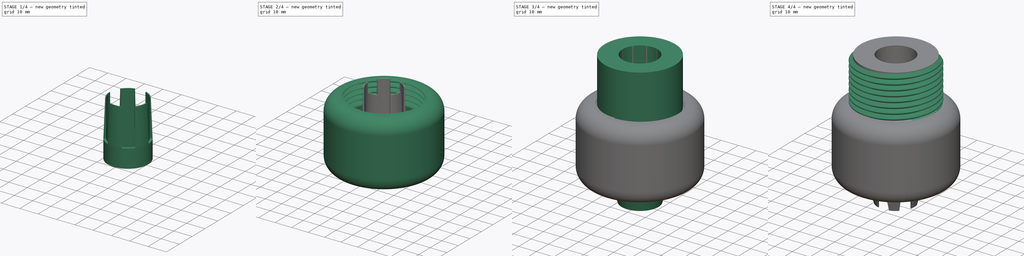
[diagram: build sequence overview — one tinted view per stage of 4, left to right]
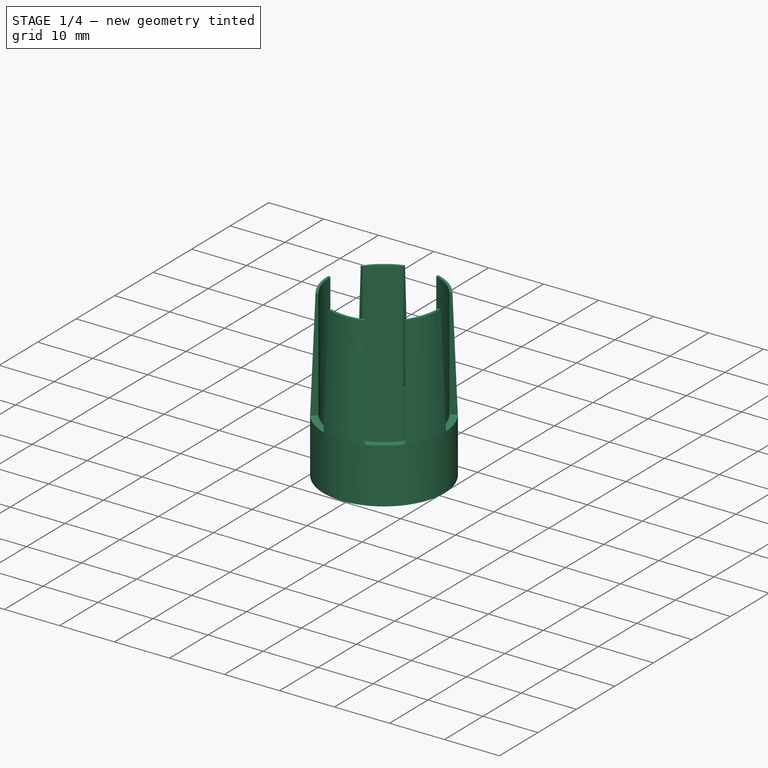
[diagram: stage 1 of 4 — iso view after this stage's code; geometry added in this stage tinted green]
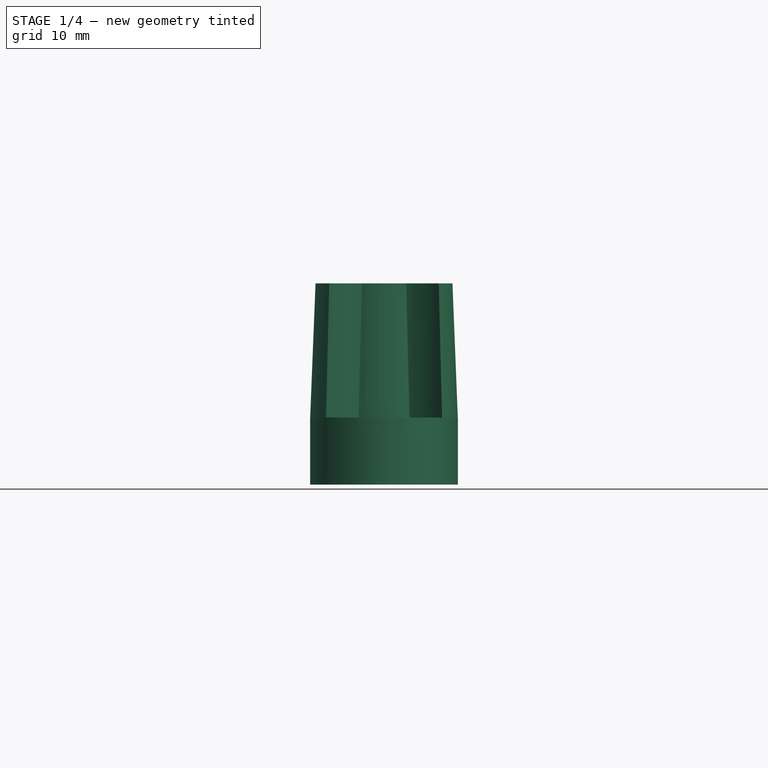
[diagram: stage 1 of 4 — front view after this stage's code; geometry added in this stage tinted green]
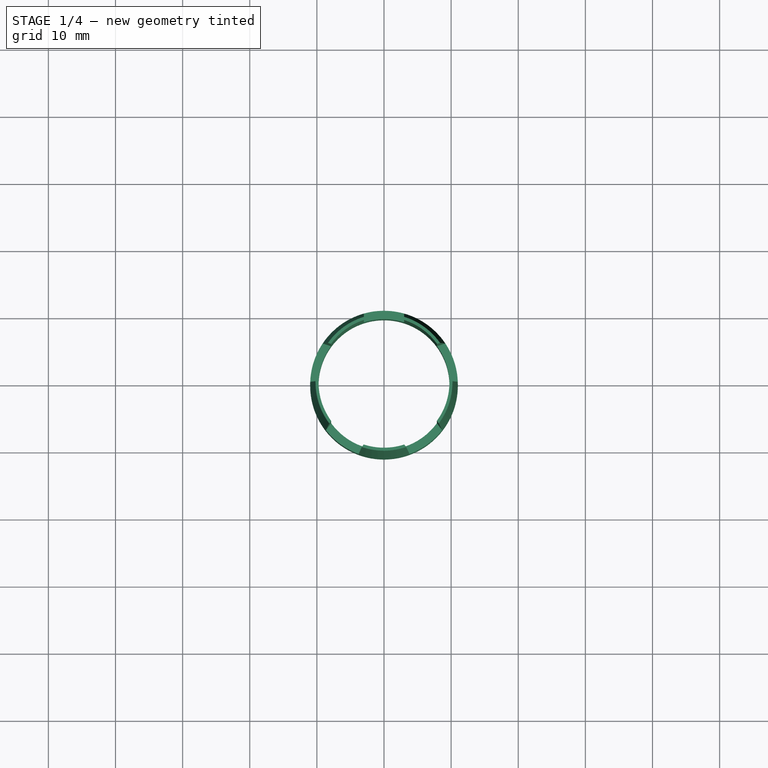
[diagram: stage 1 of 4 — top view after this stage's code; geometry added in this stage tinted green]
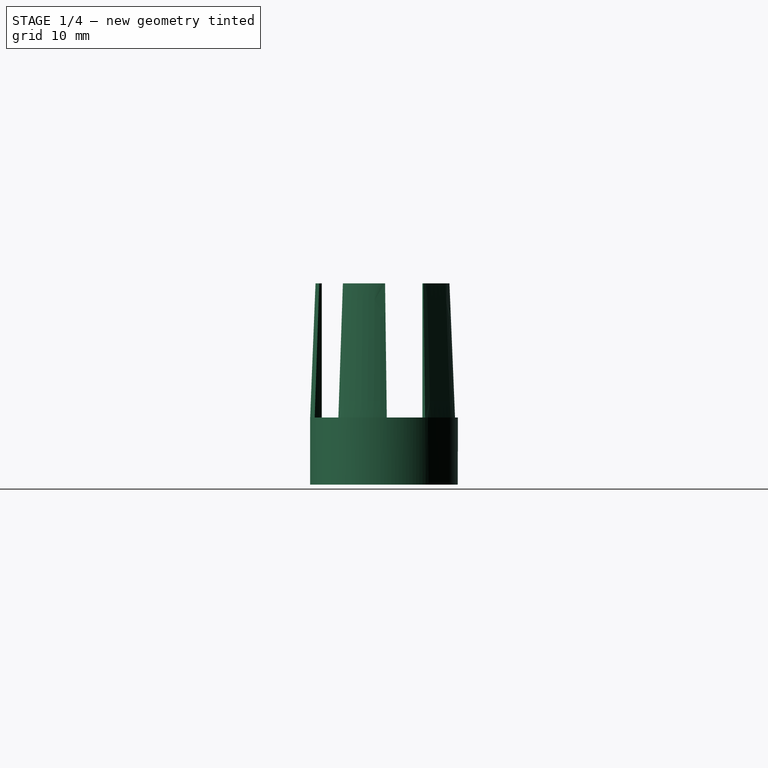
[diagram: stage 1 of 4 — right view after this stage's code; geometry added in this stage tinted green]
FCSTD DOCUMENT  (FreeCAD 0.21R33668 +26 (Git))
Label: asztallab_szorito
License: All rights reserved
LicenseURL: https://en.wikipedia.org/wiki/All_rights_reserved
objects: Sketcher::SketchObject×9, PartDesign::Revolution×3, PartDesign::Body×3, PartDesign::Pocket×2, PartDesign::PolarPattern×2, PartDesign::SubtractiveHelix×2, PartDesign::AdditiveHelix×1, PartDesign::Fillet×1
note: 32 computed .brp shape members not serialized (recipe doc carries the construction recipe); baked Part::Feature solids carry a one-line shape summary decoded from their .brp

FEATURE [Sketcher::SketchObject] Sketch008
  FullyConstrained = false
  MapMode = 5
  Placement = pos=(0,0,0) rot=(1,0,0;1.5708rad)
  Support = -> [XZ_Plane]
  sketch-geometry (5):
    g0: LineSegment StartX=-28.4554 StartY=27 StartZ=0 EndX=-28.4554 EndY=42 EndZ=0
    g1: LineSegment StartX=-28.4554 StartY=42 StartZ=0 EndX=28.4554 EndY=42 EndZ=0
    g2: LineSegment StartX=28.4554 StartY=42 StartZ=0 EndX=28.4554 EndY=27 EndZ=0
    g3: LineSegment StartX=28.4554 StartY=27 StartZ=0 EndX=-28.4554 EndY=27 EndZ=0
    g4: GeomPoint X=0 Y=34.5 Z=0
  constraints (12):
    c: Coincident(g0,g1)
    c: Coincident(g1,g2)
    c: Coincident(g2,g3)
    c: Coincident(g3,g0)
    c: Horizontal(g1)
    c: Horizontal(g3)
    c: Vertical(g0)
    c: Vertical(g2)
    c: Symmetric(g1,g0,g4)
    c: PointOnObject(g4,g-2)
    c: DistanceY(g2,g2) = 15
    c: DistanceY(g-1,g2) = 27
FEATURE [PartDesign::Body] Body  label="felso resz"
  Group = -> [Sketch,Revolution,Sketch001,AdditiveHelix,Sketch003,Pocket,PolarPattern,Sketch008]
  Origin = -> Origin
  Tip = -> PolarPattern
FEATURE [Sketcher::SketchObject] Sketch009
  FullyConstrained = false
  MapMode = 5
  Placement = pos=(0,0,0) rot=(1,0,0;1.5708rad)
  Support = -> [XZ_Plane002]
  sketch-geometry (5):
    g0: LineSegment StartX=-34.2001 StartY=0 StartZ=0 EndX=-34.2001 EndY=16 EndZ=0
    g1: LineSegment StartX=-34.2001 StartY=16 StartZ=0 EndX=34.2001 EndY=16 EndZ=0
    g2: LineSegment StartX=34.2001 StartY=16 StartZ=0 EndX=34.2001 EndY=0 EndZ=0
    g3: LineSegment StartX=34.2001 StartY=0 StartZ=0 EndX=-34.2001 EndY=0 EndZ=0
    g4: GeomPoint X=0 Y=8 Z=0
  constraints (12):
    c: Coincident(g0,g1)
    c: Coincident(g1,g2)
    c: Coincident(g2,g3)
    c: Coincident(g3,g0)
    c: Horizontal(g1)
    c: Horizontal(g3)
    c: Vertical(g0)
    c: Vertical(g2)
    c: Symmetric(g1,g0,g4)
    c: PointOnObject(g4,g-2)
    c: DistanceY(g2,g2) = 16
    c: PointOnObject(g2,g-1)
FEATURE [PartDesign::Body] Body002  label="szorito"
  Group = -> [Sketch006,Revolution002,Fillet,Sketch007,SubtractiveHelix,SubtractiveHelix001,Sketch009]
  Origin = -> Origin002
  Tip = -> SubtractiveHelix001
FEATURE [Sketcher::SketchObject] Sketch010
  FullyConstrained = true
  MapMode = 5
  Placement = pos=(0,0,0) rot=(1,0,0;1.5708rad)
  Support = -> [XZ_Plane003]
  sketch-geometry (5):
    g0: LineSegment StartX=-9.75 StartY=-10 StartZ=0 EndX=-9.75 EndY=20 EndZ=0
    g1: LineSegment StartX=-10.2 StartY=20 StartZ=0 EndX=-11 EndY=0 EndZ=0
    g2: LineSegment StartX=-11 StartY=0 StartZ=0 EndX=-11 EndY=-10 EndZ=0
    g3: LineSegment StartX=-11 StartY=-10 StartZ=0 EndX=-9.75 EndY=-10 EndZ=0
    g4: LineSegment StartX=-10.2 StartY=20 StartZ=0 EndX=-9.75 EndY=20 EndZ=0
  constraints (15):
    c: Vertical(g0)
    c: PointOnObject(g1,g-1)
    c: Vertical(g2)
    c: Horizontal(g3)
    c: Coincident(g3,g0)
    c: DistanceX(g0,g-1) = 9.75
    c: DistanceX(g1,g-1) = 11
    c: Coincident(g2,g1)
    c: Coincident(g2,g3)
    c: Horizontal(g4)
    c: DistanceX(g4,g4) = 0.45
    c: Coincident(g1,g4)
    c: Coincident(g0,g4)
    c: DistanceY(g1,g1) = 20
    c: DistanceY(g2,g2) = 10
FEATURE [PartDesign::Revolution] Revolution003
  Angle = 360
  Axis = (0,2e-16,1)
  Base = (0,0,0)
  Placement = pos=(0,0,0) rot=(1,0,0;1.5708rad)
  Profile = -> Sketch010
  ReferenceAxis = -> Sketch010 [V_Axis]
FEATURE [Sketcher::SketchObject] Sketch011
  FullyConstrained = true
  MapMode = 5
  Placement = pos=(0,0,0) rot=(1,0,0;1.5708rad)
  Support = -> [XZ_Plane003]
  sketch-geometry (4):
    g0: LineSegment StartX=-3 StartY=0 StartZ=0 EndX=3 EndY=0 EndZ=0
    g1: LineSegment StartX=3 StartY=0 StartZ=0 EndX=3 EndY=30 EndZ=0
    g2: LineSegment StartX=3 StartY=30 StartZ=0 EndX=-3 EndY=30 EndZ=0
    g3: LineSegment StartX=-3 StartY=30 StartZ=0 EndX=-3 EndY=0 EndZ=0
  constraints (11):
    c: Coincident(g0,g1)
    c: Coincident(g1,g2)
    c: Coincident(g2,g3)
    c: Coincident(g3,g0)
    c: Horizontal(g0)
    c: Horizontal(g2)
    c: Vertical(g1)
    c: Vertical(g3)
    c: Symmetric(g0,g0,g-1)
    c: DistanceY(g1,g1) = 30
    c: DistanceX(g2,g2) = 6
FEATURE [PartDesign::Pocket] Pocket001
  BaseFeature = -> Revolution003
  Direction = (0,1,-2e-16)
  Length = 5
  Length2 = 5
  Placement = pos=(0,0,0) rot=(1,0,0;1.5708rad)
  Profile = -> Sketch011
  ReferenceAxis = -> Sketch011 [N_Axis]
  Type = 1
FEATURE [PartDesign::PolarPattern] PolarPattern001
  Angle = 360
  Axis = -> Sketch011 [V_Axis]
  BaseFeature = -> Pocket001
  Occurrences = 5
  Originals = -> [Pocket001]
  Placement = pos=(0,0,0) rot=(1,0,0;1.5708rad)
FEATURE [PartDesign::Body] Body003  label="hezagolo"
  Group = -> [Sketch010,Revolution003,Sketch011,Pocket001,PolarPattern001]
  Origin = -> Origin003
  Tip = -> PolarPattern001
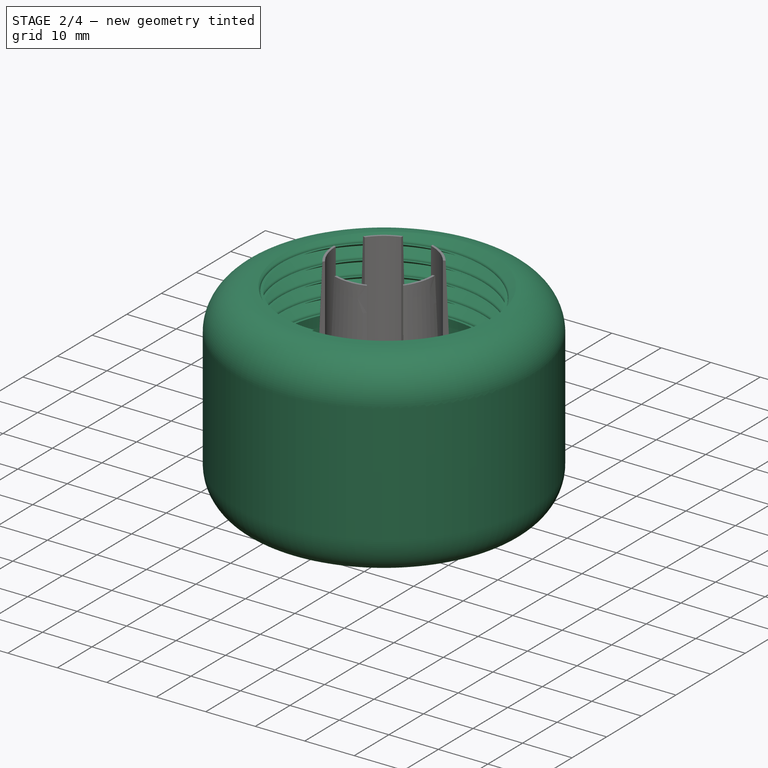
[diagram: stage 2 of 4 — iso view after this stage's code; geometry added in this stage tinted green]
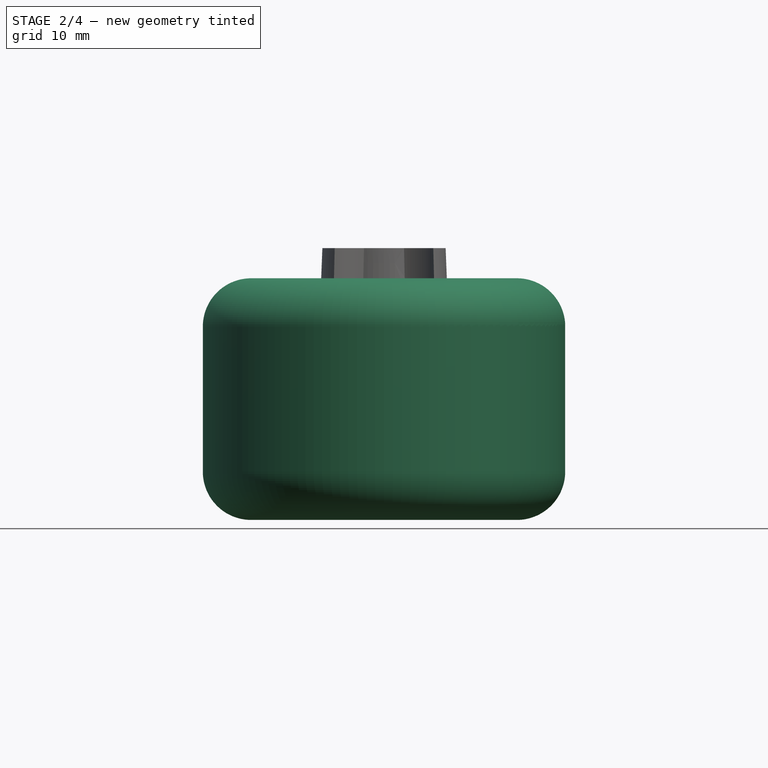
[diagram: stage 2 of 4 — front view after this stage's code; geometry added in this stage tinted green]
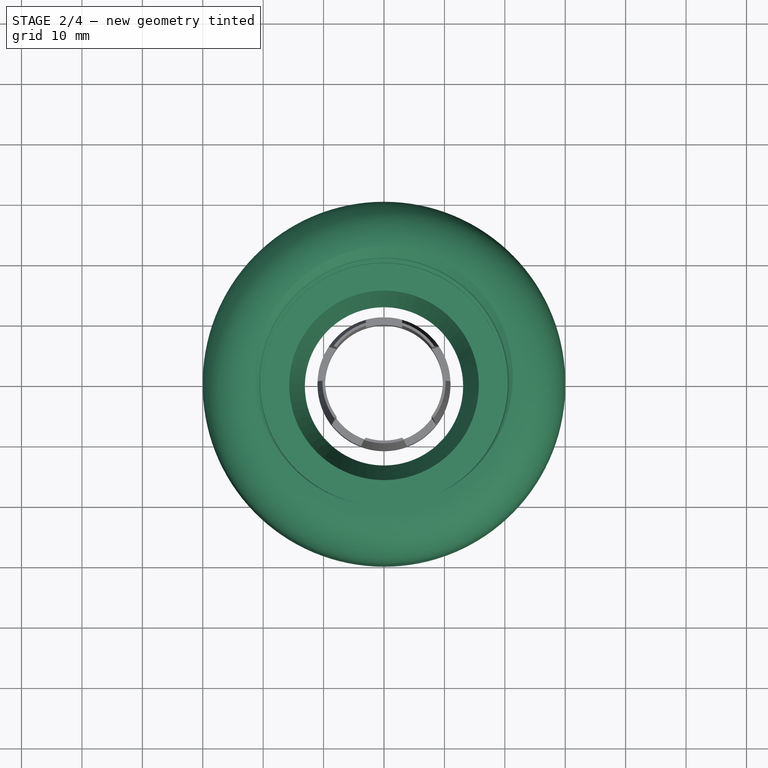
[diagram: stage 2 of 4 — top view after this stage's code; geometry added in this stage tinted green]
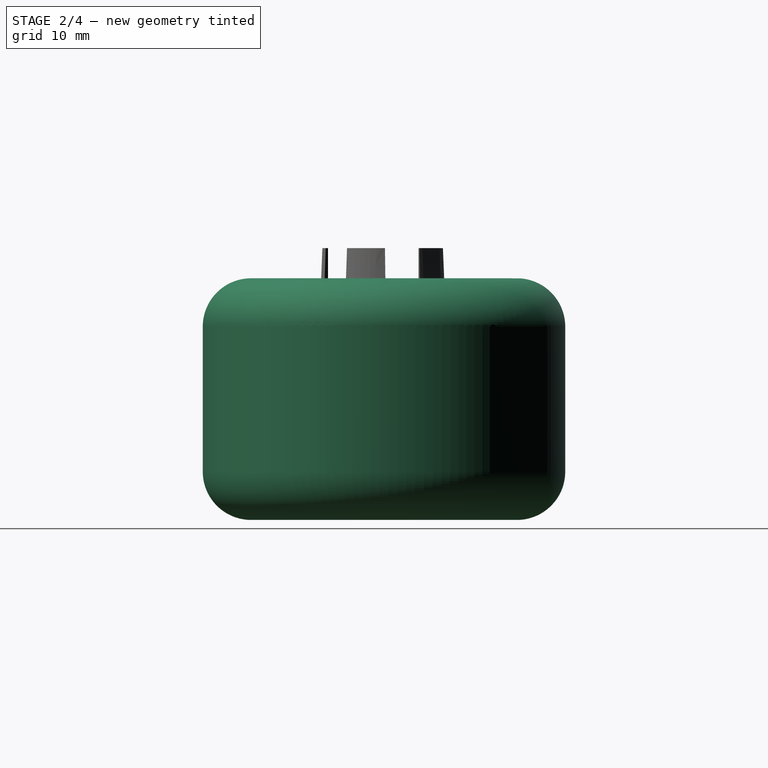
[diagram: stage 2 of 4 — right view after this stage's code; geometry added in this stage tinted green]
FEATURE [Sketcher::SketchObject] Sketch006
  FullyConstrained = true
  MapMode = 5
  Placement = pos=(0,0,0) rot=(0.57735,0.57735,0.57735;2.0944rad)
  Support = -> [YZ_Plane002]
  sketch-geometry (9):
    g0: LineSegment StartX=-25 StartY=0 StartZ=0 EndX=-25 EndY=-7 EndZ=0
    g1: LineSegment StartX=-20.1845 StartY=-15.3407 StartZ=0 EndX=-15.6845 EndY=-15.3407 EndZ=0
    g2: LineSegment StartX=-15.6845 StartY=-15.3407 StartZ=0 EndX=-13.0963 EndY=-25 EndZ=0
    g3: LineSegment StartX=-13.0963 StartY=-25 StartZ=0 EndX=-30 EndY=-25 EndZ=0
    g4: LineSegment StartX=-30 StartY=-25 StartZ=0 EndX=-30 EndY=15 EndZ=0
    g5: LineSegment StartX=-30 StartY=15 StartZ=0 EndX=-20 EndY=15 EndZ=0
    g6: LineSegment StartX=-25 StartY=0 StartZ=0 EndX=-20 EndY=0 EndZ=0
    g7: LineSegment StartX=-20 StartY=0 StartZ=0 EndX=-20 EndY=15 EndZ=0
    g8: LineSegment StartX=-20.1845 StartY=-15.3407 StartZ=0 EndX=-25 EndY=-7 EndZ=0
  constraints (27):
    c: Vertical(g0)
    c: Horizontal(g1)
    c: Coincident(g2,g1)
    c: Coincident(g3,g2)
    c: Horizontal(g3)
    c: Vertical(g4)
    c: Horizontal(g5)
    c: Coincident(g6,g0)
    c: Coincident(g7,g5)
    c: Coincident(g4,g5)
    c: Coincident(g3,g4)
    c: Angle(g2,g-1) = 1.309
    c: Coincident(g0,g8)
    c: Coincident(g1,g8)
    c: Horizontal(g6)
    c: Coincident(g6,g7)
    c: Vertical(g7)
    c: Angle(g1,g8) = 2.0944
    c: DistanceX(g3,g0) = 5
    c: DistanceX(g6,g-1) = 20
    c: DistanceY(g7,g7) = 15
    c: DistanceY(g0,g0) = 7
    c: Distance(g2) = 10
    c: DistanceX(g6,g6) = 5
    c: DistanceY(g3,g0) = 25
    c: PointOnObject(g6,g-1)
    c: DistanceX(g1,g1) = 4.5
FEATURE [PartDesign::Revolution] Revolution002
  Angle = 360
  Axis = (-2e-16,3e-16,1)
  Base = (0,0,0)
  Placement = pos=(0,0,0) rot=(0.57735,0.57735,0.57735;2.0944rad)
  Profile = -> Sketch006
  ReferenceAxis = -> Sketch006 [V_Axis]
FEATURE [PartDesign::Fillet] Fillet
  Base = -> Revolution002 [Edge11,Edge10]
  BaseFeature = -> Revolution002
  Placement = pos=(0,0,0) rot=(0.57735,0.57735,0.57735;2.0944rad)
  Radius = 8
  SupportTransform = false
  UseAllEdges = false
FEATURE [Sketcher::SketchObject] Sketch007
  FullyConstrained = true
  MapMode = 5
  Placement = pos=(0,0,0) rot=(0.57735,0.57735,0.57735;2.0944rad)
  Support = -> [YZ_Plane002]
  sketch-geometry (8):
    g0: LineSegment StartX=-20.75 StartY=2.56699 StartZ=0 EndX=-22.5981 EndY=1.5 EndZ=0
    g1: LineSegment StartX=-22.5981 StartY=1.5 StartZ=0 EndX=-20.75 EndY=0.433013 EndZ=0
    g2: LineSegment StartX=-20.5 StartY=3 StartZ=0 EndX=-19.8981 EndY=3 EndZ=0
    g3: LineSegment StartX=-19.8981 StartY=3 StartZ=0 EndX=-19.8981 EndY=0 EndZ=0
    g4: LineSegment StartX=-19.8981 StartY=0 StartZ=0 EndX=-20.5 EndY=0 EndZ=0
    g5: ArcOfCircle CenterX=-21 CenterY=3 CenterZ=0 NormalX=0 NormalY=0 NormalZ=1 AngleXU=0 Radius=0.5 StartAngle=5.23599 EndAngle=6.28319
    g6: ArcOfCircle CenterX=-21 CenterY=0 CenterZ=0 NormalX=0 NormalY=0 NormalZ=1 AngleXU=0 Radius=0.5 StartAngle=0 EndAngle=1.0472
    g7: LineSegment StartX=-19.8981 StartY=1.5 StartZ=0 EndX=-22.5981 EndY=1.5 EndZ=0
  constraints (23):
    c: PointOnObject(g4,g-1)
    c: Coincident(g1,g0)
    c: Coincident(g3,g2)
    c: PointOnObject(g3,g-1)
    c: Vertical(g3)
    c: Coincident(g4,g3)
    c: Horizontal(g2)
    c: Equal(g0,g1)
    c: Angle(g1,g0) = 1.0472
    c: DistanceY(g4,g2) = 3
    c: DistanceX(g2,g-1) = 20.5
    c: Tangent(g0,g5) = 1.5708
    c: Tangent(g1,g6) = 1.5708
    c: Diameter(g5) = 1
    c: Horizontal(g5,g2)
    c: Coincident(g7,g0)
    c: Horizontal(g7)
    c: Symmetric(g2,g3,g7)
    c: Diameter(g6) = 1
    c: PointOnObject(g6,g-1)
    c: DistanceX(g7,g7) = 2.7
    c: Coincident(g2,g5)
    c: Coincident(g6,g4)
FEATURE [PartDesign::SubtractiveHelix] SubtractiveHelix
  Angle = 0
  Axis = (-2e-16,3e-16,1)
  Base = (0,0,0)
  BaseFeature = -> Fillet
  Growth = 0
  HasBeenEdited = true
  Height = 15
  LeftHanded = false
  Mode = 0
  Outside = false
  Pitch = 3.001
  Placement = pos=(0,0,0) rot=(0.57735,0.57735,0.57735;2.0944rad)
  Profile = -> Sketch007
  ReferenceAxis = -> Sketch007 [V_Axis]
  Turns = 4.99833
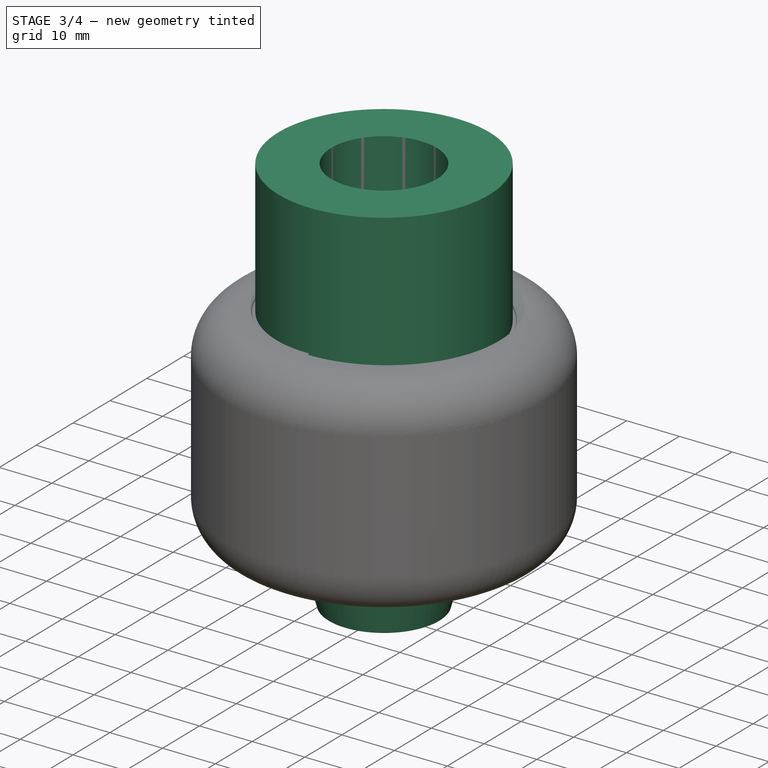
[diagram: stage 3 of 4 — iso view after this stage's code; geometry added in this stage tinted green]
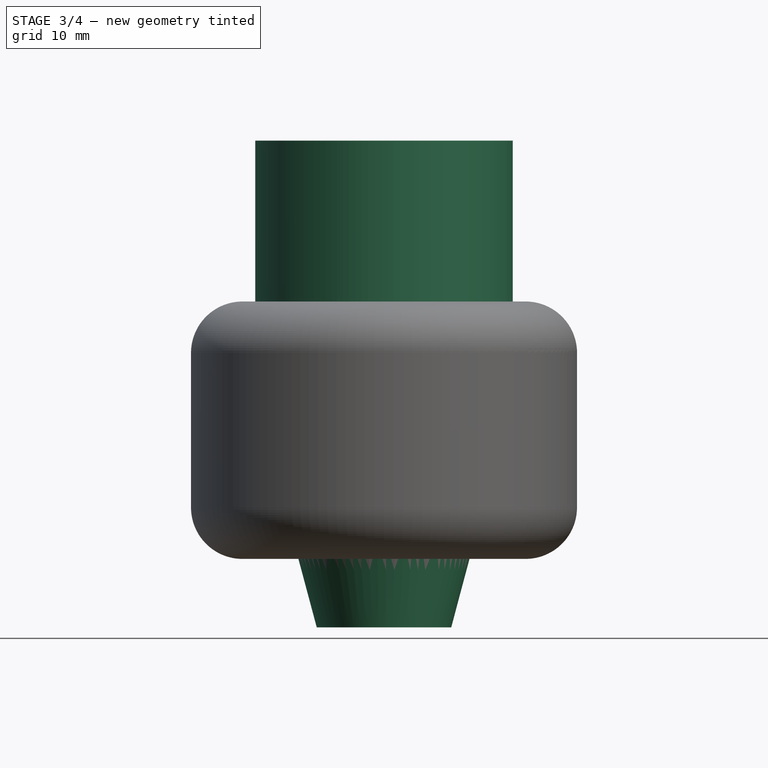
[diagram: stage 3 of 4 — front view after this stage's code; geometry added in this stage tinted green]
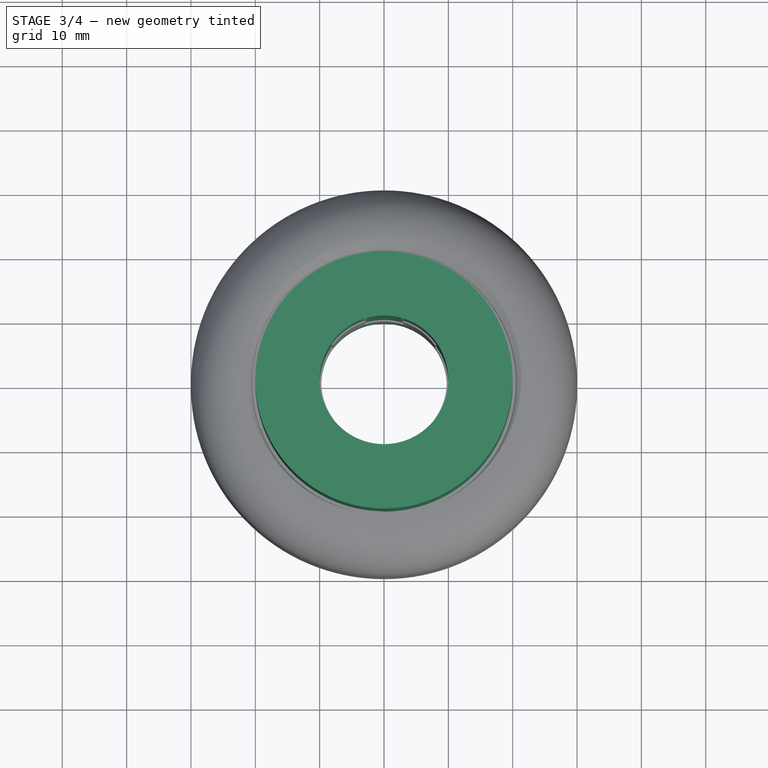
[diagram: stage 3 of 4 — top view after this stage's code; geometry added in this stage tinted green]
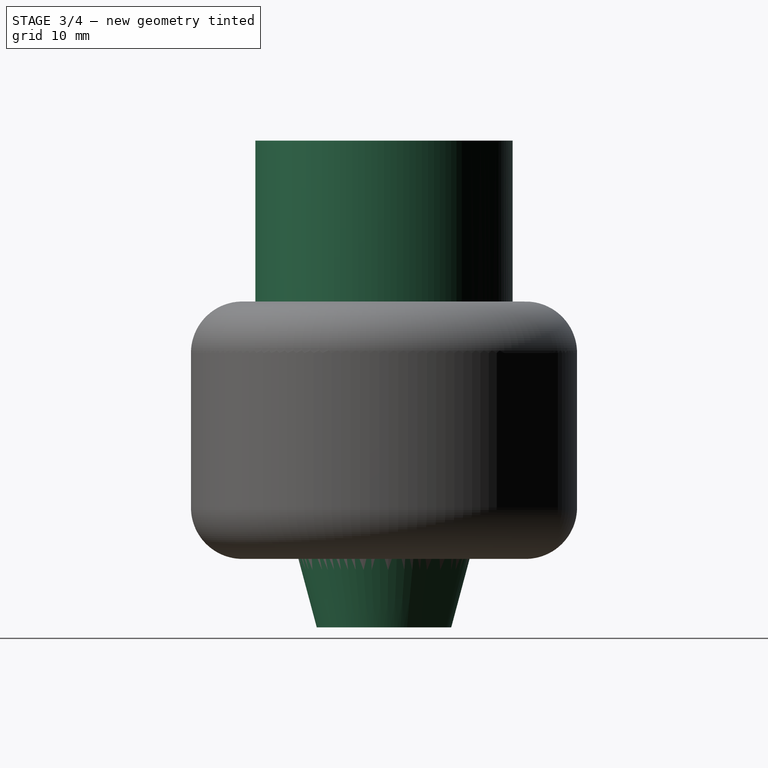
[diagram: stage 3 of 4 — right view after this stage's code; geometry added in this stage tinted green]
FEATURE [Sketcher::SketchObject] Sketch
  FullyConstrained = true
  MapMode = 5
  Placement = pos=(0,0,0) rot=(1,0,0;1.5708rad)
  Support = -> [XZ_Plane]
  sketch-geometry (5):
    g0: LineSegment StartX=-10 StartY=40 StartZ=0 EndX=-10 EndY=-35.6411 EndZ=0
    g1: LineSegment StartX=-20 StartY=40 StartZ=0 EndX=-20 EndY=0 EndZ=0
    g2: LineSegment StartX=-20 StartY=0 StartZ=0 EndX=-10.45 EndY=-35.6411 EndZ=0
    g3: LineSegment StartX=-10.45 StartY=-35.6411 StartZ=0 EndX=-10 EndY=-35.6411 EndZ=0
    g4: LineSegment StartX=-20 StartY=40 StartZ=0 EndX=-10 EndY=40 EndZ=0
  constraints (16):
    c: Vertical(g0)
    c: Vertical(g1)
    c: PointOnObject(g1,g-1)
    c: DistanceX(g1,g-1) = 20
    c: DistanceY(g1,g1) = 40
    c: DistanceX(g1,g0) = 10
    c: DistanceX(g0,g-1) = 10
    c: Coincident(g2,g1)
    c: Coincident(g2,g3)
    c: Horizontal(g3)
    c: DistanceX(g3,g3) = 0.45
    c: Horizontal(g4)
    c: Coincident(g0,g4)
    c: Coincident(g1,g4)
    c: Coincident(g0,g3)
    c: Angle(g2,g-1) = 1.309
FEATURE [PartDesign::Revolution] Revolution
  Angle = 360
  Axis = (0,-2e-16,1)
  Base = (0,0,0)
  Placement = pos=(0,0,0) rot=(1,0,0;1.5708rad)
  Profile = -> Sketch
  ReferenceAxis = -> Sketch [V_Axis]
FEATURE [PartDesign::SubtractiveHelix] SubtractiveHelix001
  Angle = 0
  Axis = (-2e-16,3e-16,1)
  Base = (0,0,0)
  BaseFeature = -> SubtractiveHelix
  Growth = 0
  HasBeenEdited = true
  Height = 6
  LeftHanded = false
  Mode = 0
  Outside = false
  Pitch = 3.001
  Placement = pos=(0,0,0) rot=(0.57735,0.57735,0.57735;2.0944rad)
  Profile = -> Sketch007
  ReferenceAxis = -> Sketch007 [V_Axis]
  Reversed = true
  Turns = 1.99933
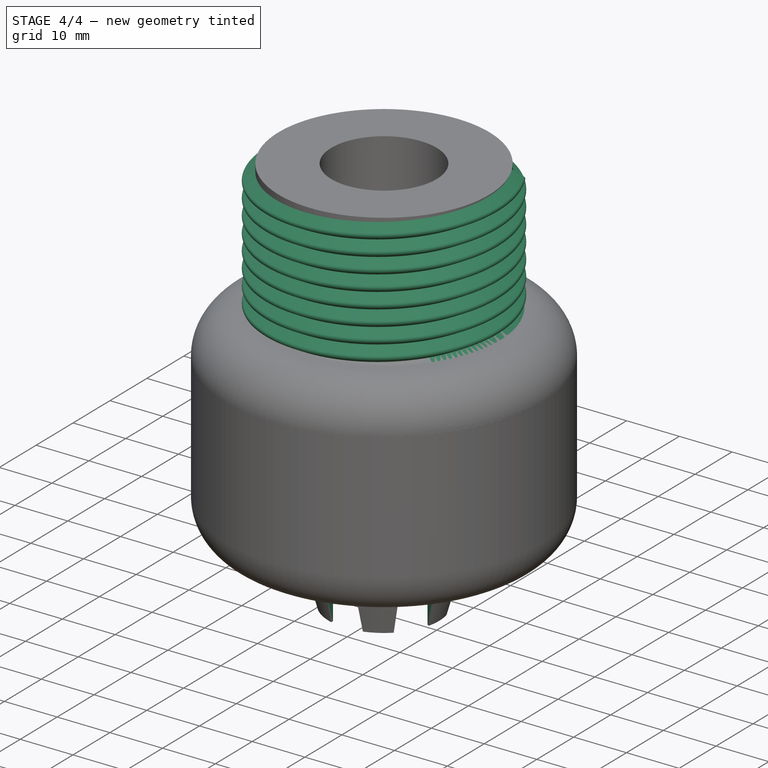
[diagram: stage 4 of 4 — iso view after this stage's code; geometry added in this stage tinted green]
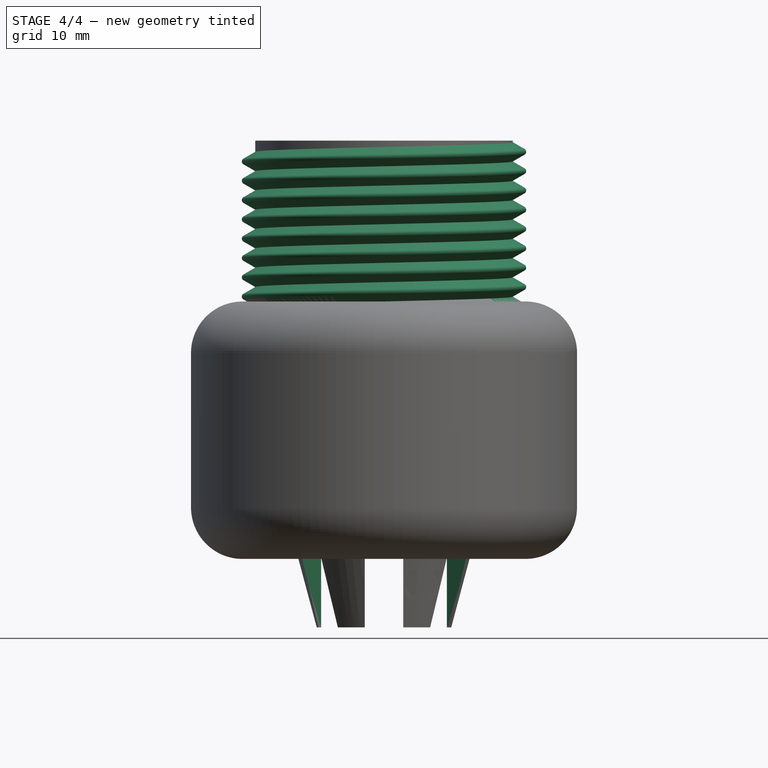
[diagram: stage 4 of 4 — front view after this stage's code; geometry added in this stage tinted green]
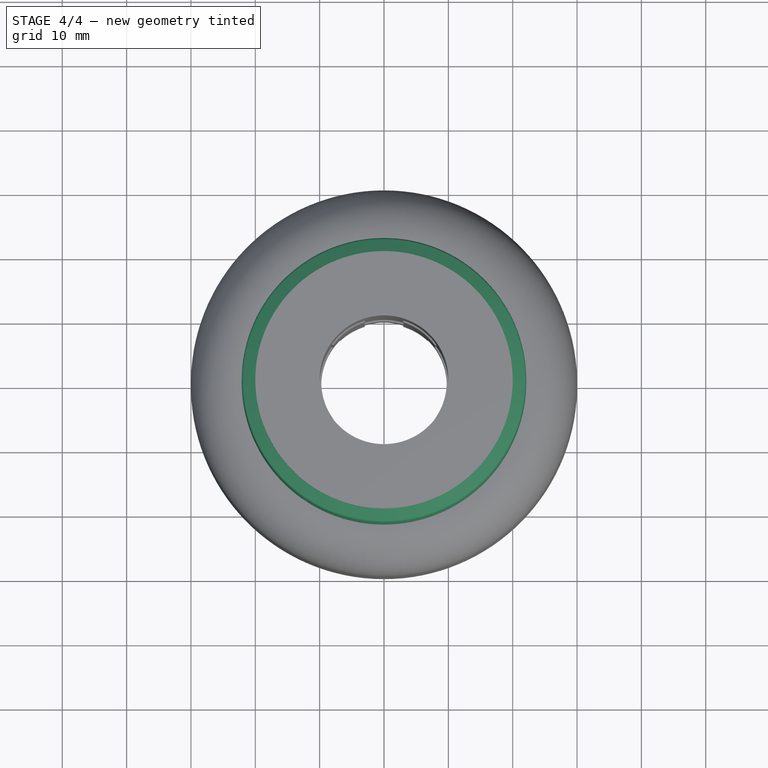
[diagram: stage 4 of 4 — top view after this stage's code; geometry added in this stage tinted green]
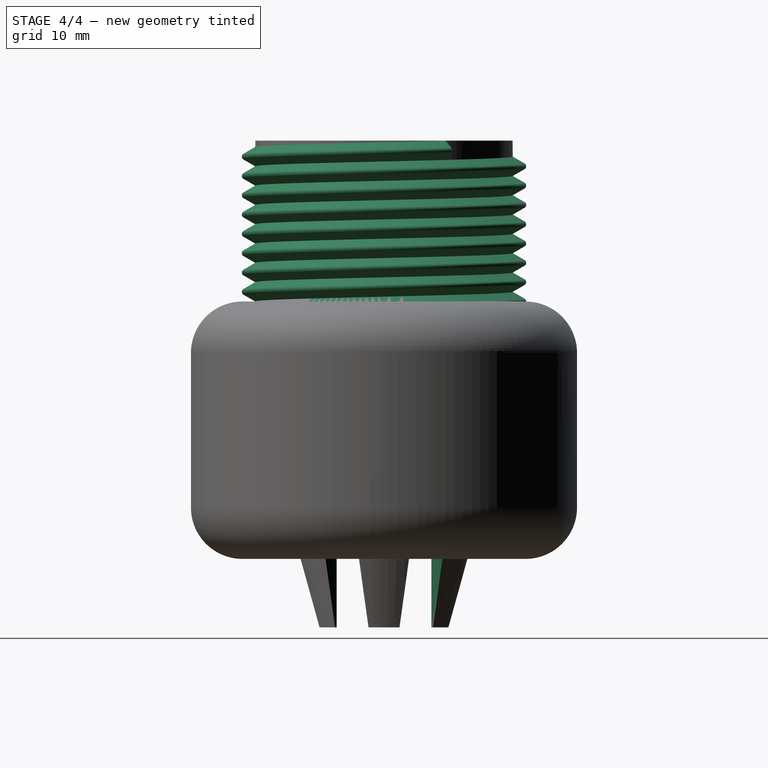
[diagram: stage 4 of 4 — right view after this stage's code; geometry added in this stage tinted green]
FEATURE [Sketcher::SketchObject] Sketch001
  FullyConstrained = true
  MapMode = 5
  Placement = pos=(0,0,0) rot=(0.57735,0.57735,0.57735;2.0944rad)
  Support = -> [YZ_Plane]
  sketch-geometry (6):
    g0: LineSegment StartX=-20 StartY=3 StartZ=0 EndX=-21.8481 EndY=1.93301 EndZ=0
    g1: LineSegment StartX=-21.8481 StartY=1.06699 StartZ=0 EndX=-20 EndY=0 EndZ=0
    g2: LineSegment StartX=-20 StartY=3 StartZ=0 EndX=-19.9 EndY=3 EndZ=0
    g3: LineSegment StartX=-19.9 StartY=3 StartZ=0 EndX=-19.9 EndY=0 EndZ=0
    g4: LineSegment StartX=-19.9 StartY=0 StartZ=0 EndX=-20 EndY=0 EndZ=0
    g5: ArcOfCircle CenterX=-21.5981 CenterY=1.5 CenterZ=0 NormalX=0 NormalY=0 NormalZ=1 AngleXU=0 Radius=0.5 StartAngle=2.0944 EndAngle=4.18879
  constraints (17):
    c: Angle(g1,g0) = 1.0472
    c: Vertical(g1,g0)
    c: PointOnObject(g1,g-1)
    c: Equal(g0,g1)
    c: DistanceX(g1,g-1) = 20
    c: DistanceY(g1,g0) = 3
    c: Coincident(g2,g0)
    c: Horizontal(g2)
    c: PointOnObject(g3,g-1)
    c: Vertical(g3)
    c: Coincident(g4,g3)
    c: Coincident(g4,g1)
    c: DistanceX(g2,g2) = 0.1
    c: Coincident(g3,g2)
    c: Tangent(g0,g5) = -1.5708
    c: Tangent(g1,g5) = -1.5708
    c: Diameter(g5) = 1
FEATURE [PartDesign::AdditiveHelix] AdditiveHelix
  Angle = 0
  Axis = (-2e-16,3e-16,1)
  Base = (0,0,0)
  BaseFeature = -> Revolution
  Growth = 0
  HasBeenEdited = true
  Height = 37
  LeftHanded = false
  Mode = 0
  Outside = false
  Pitch = 3.001
  Placement = pos=(0,0,0) rot=(1,0,0;1.5708rad)
  Profile = -> Sketch001
  ReferenceAxis = -> Sketch001 [V_Axis]
  Turns = 12.3292
FEATURE [Sketcher::SketchObject] Sketch003
  FullyConstrained = true
  MapMode = 5
  Placement = pos=(0,0,0) rot=(1,0,0;1.5708rad)
  Support = -> [XZ_Plane]
  sketch-geometry (4):
    g0: LineSegment StartX=-3 StartY=-2 StartZ=0 EndX=3 EndY=-2 EndZ=0
    g1: LineSegment StartX=3 StartY=-2 StartZ=0 EndX=3 EndY=-42 EndZ=0
    g2: LineSegment StartX=3 StartY=-42 StartZ=0 EndX=-3 EndY=-42 EndZ=0
    g3: LineSegment StartX=-3 StartY=-42 StartZ=0 EndX=-3 EndY=-2 EndZ=0
  constraints (11):
    c: Coincident(g0,g1)
    c: Coincident(g1,g2)
    c: Coincident(g2,g3)
    c: Coincident(g3,g0)
    c: Horizontal(g2)
    c: Vertical(g1)
    c: Vertical(g3)
    c: Symmetric(g0,g0,g-2)
    c: DistanceX(g0,g0) = 6
    c: DistanceY(g0,g-1) = 2
    c: DistanceY(g1,g1) = 40
FEATURE [PartDesign::Pocket] Pocket
  BaseFeature = -> AdditiveHelix
  Direction = (0,1,2e-16)
  Length = 5
  Length2 = 5
  Placement = pos=(0,0,0) rot=(1,0,0;1.5708rad)
  Profile = -> Sketch003
  ReferenceAxis = -> Sketch003 [N_Axis]
  Type = 1
FEATURE [PartDesign::PolarPattern] PolarPattern
  Angle = 360
  Axis = -> Z_Axis
  BaseFeature = -> Pocket
  Occurrences = 6
  Originals = -> [Pocket]
  Placement = pos=(0,0,0) rot=(1,0,0;1.5708rad)
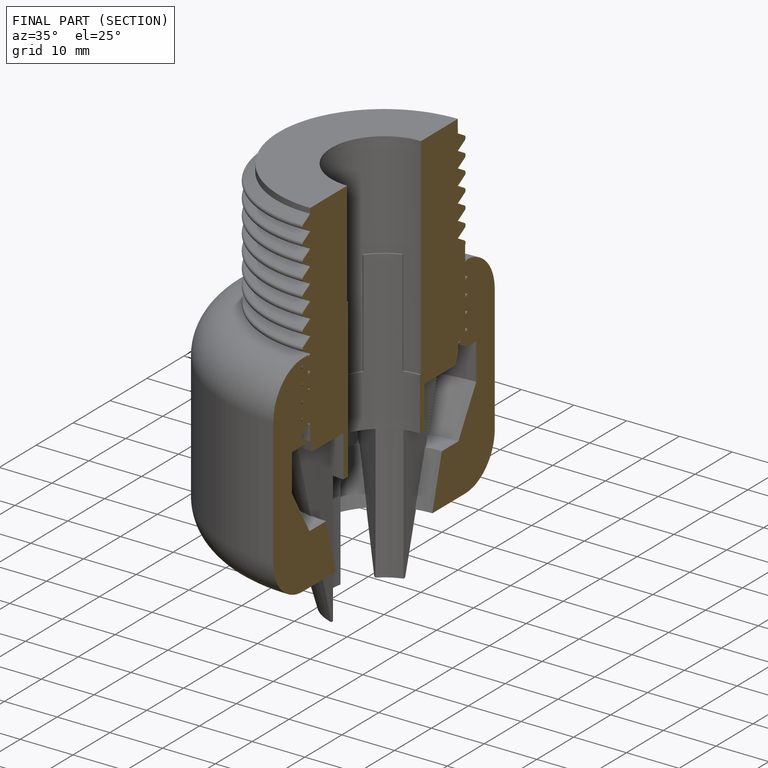
[diagram: finished part — half-section view (interior)]
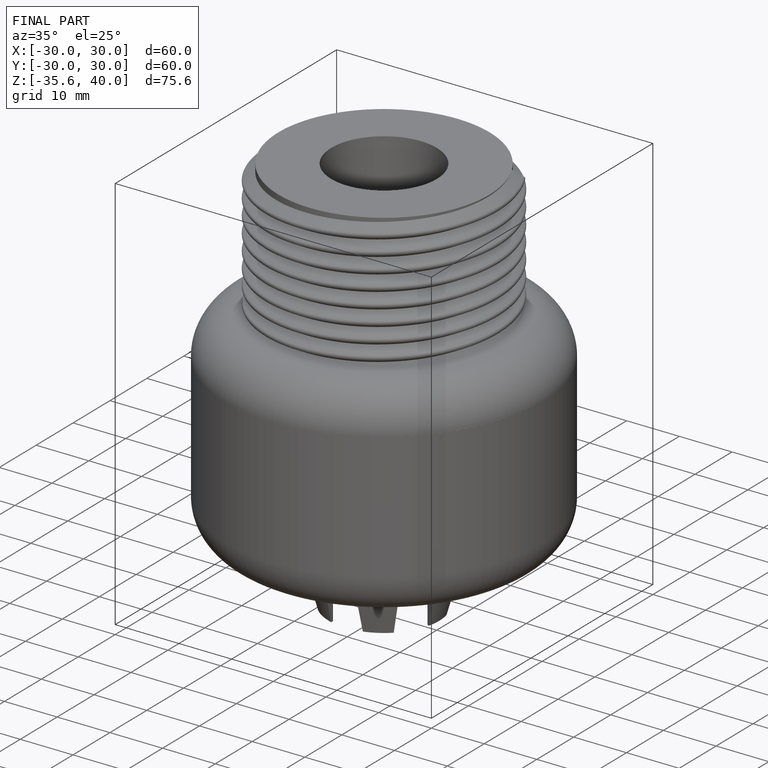
[diagram: finished part — iso view with bounding-box wireframe]
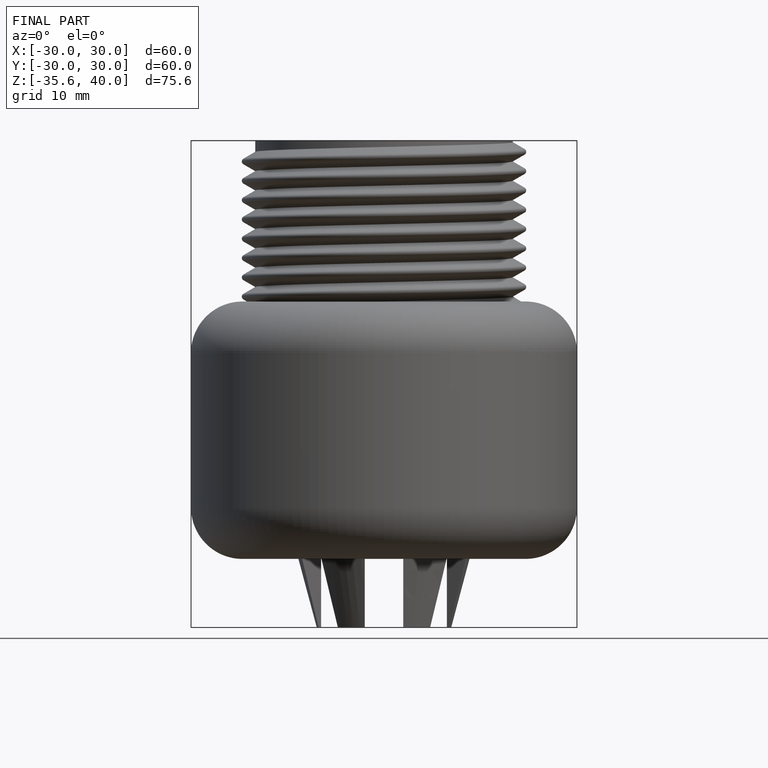
[diagram: finished part — front view with bounding-box wireframe]
